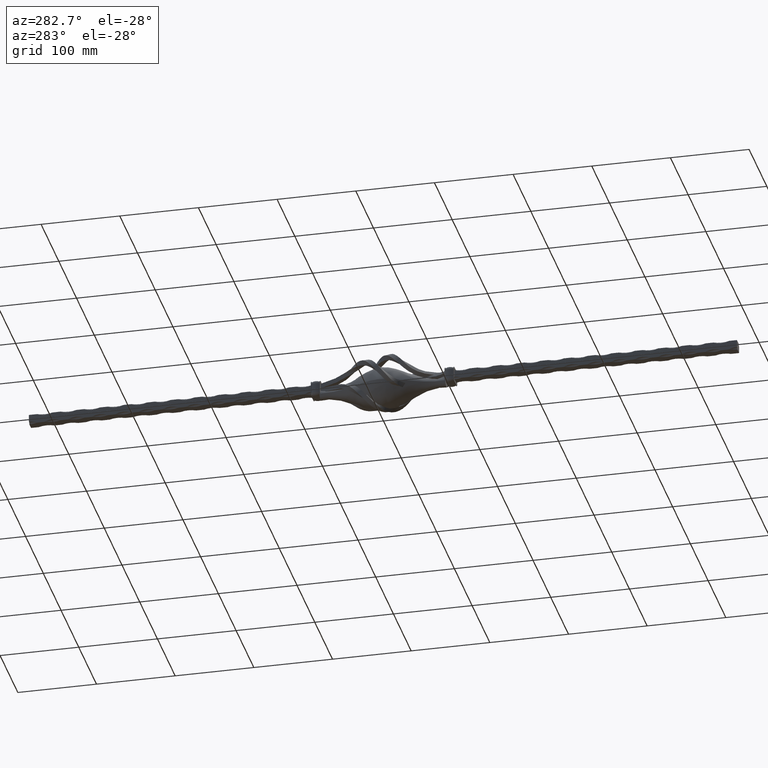
[diagram: clean part render]
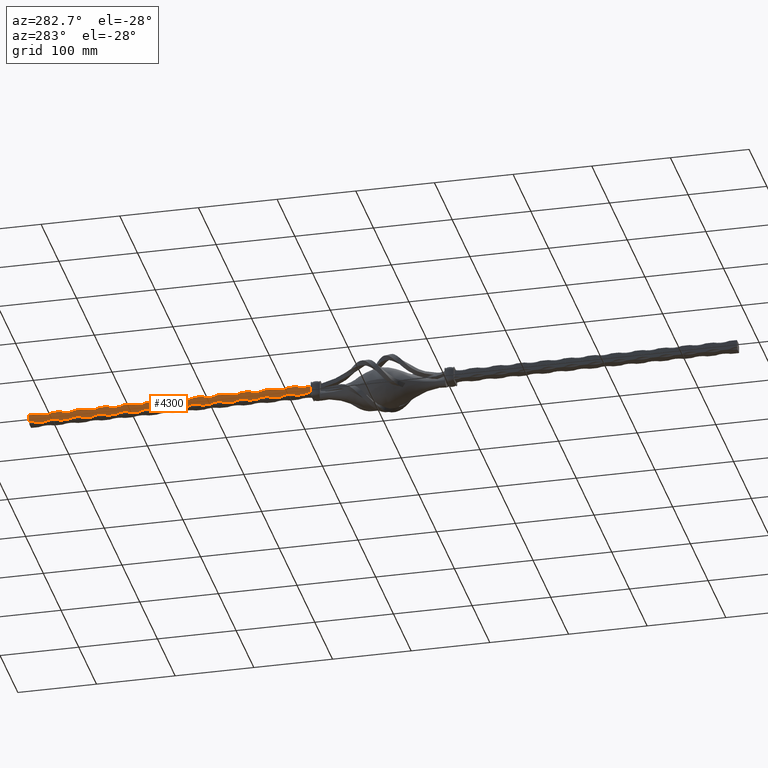
[diagram: same view with one face highlighted and labeled with its STEP entity id]
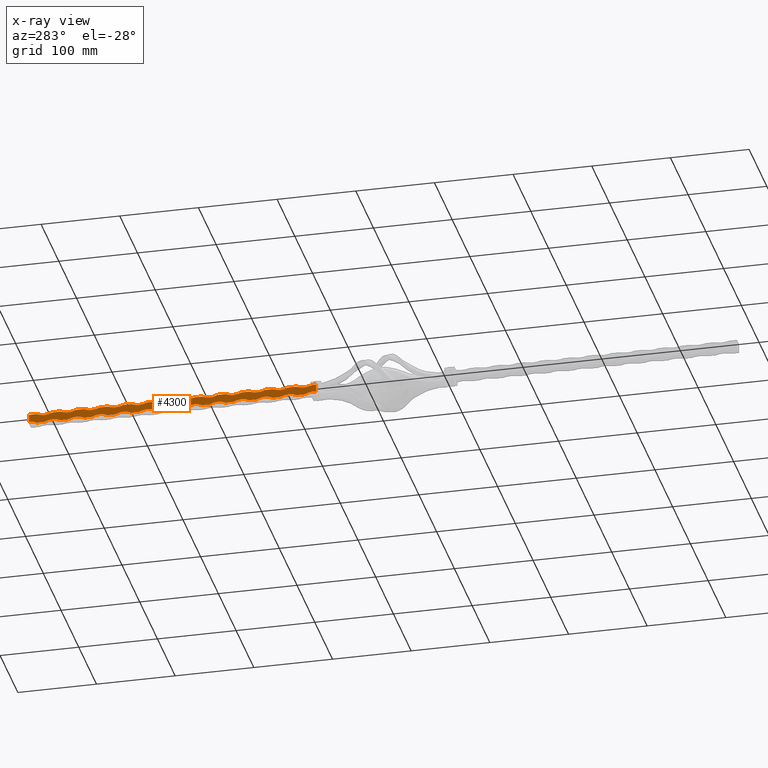
[diagram: x-ray of the same camera — body ghosted, the highlighted face saturated]
A machine part, auxiliary view. The second image highlights one B-rep face of the part: STEP entity #4300.
The next image is the same camera in x-ray: the body ghosted, the highlighted face saturated — about 0% of this face is hidden behind the body in this view.
In plain terms, the highlighted planar face has unit normal (1, -0, 0).
Its self-contained STEP definition (entity closure, byte-faithful):
#63 = CARTESIAN_POINT ( 'NONE',  ( -2.999999999999936939, 310.0000000000000000, 3.000000000000181188 ) ) ;
#104 = VERTEX_POINT ( 'NONE', #7265 ) ;
#132 = CARTESIAN_POINT ( 'NONE',  ( -2.999999999999935163, 199.9999999999995168, 2.999999999999929834 ) ) ;
#153 = VERTEX_POINT ( 'NONE', #24481 ) ;
#179 = AXIS2_PLACEMENT_3D ( 'NONE', #25331, #1592, #21069 ) ;
#226 = AXIS2_PLACEMENT_3D ( 'NONE', #10732, #25929, #10829 ) ;
#344 = DIRECTION ( 'NONE',  ( -0.000000000000000000, -1.000000000000000000, -0.000000000000000000 ) ) ;
#557 = EDGE_CURVE ( 'NONE', #24924, #27871, #6492, .T. ) ;
#598 = DIRECTION ( 'NONE',  ( 1.000000000000000000, -0.000000000000000000, 0.000000000000000000 ) ) ;
#620 = CARTESIAN_POINT ( 'NONE',  ( -2.999999999999937383, 450.0000000000000000, 2.999999999999937828 ) ) ;
#626 = CIRCLE ( 'NONE', #4016, 21.25000000000004263 ) ;
#670 = ORIENTED_EDGE ( 'NONE', *, *, #2177, .T. ) ;
#704 = VERTEX_POINT ( 'NONE', #11521 ) ;
#757 = VERTEX_POINT ( 'NONE', #3324 ) ;
#782 = DIRECTION ( 'NONE',  ( -1.000000000000000000, 0.000000000000000000, -0.000000000000000000 ) ) ;
#872 = DIRECTION ( 'NONE',  ( 0.000000000000000000, 2.612289469706245741E-15, -1.000000000000000000 ) ) ;
#913 = CIRCLE ( 'NONE', #14839, 21.25000000000003908 ) ;
#1027 = CIRCLE ( 'NONE', #7042, 21.25000000000003908 ) ;
#1199 = LINE ( 'NONE', #2865, #24333 ) ;
#1258 = CARTESIAN_POINT ( 'NONE',  ( -2.999999999999938272, 400.0000000000000000, 3.000000000000181188 ) ) ;
#1338 = EDGE_CURVE ( 'NONE', #2115, #9264, #22472, .T. ) ;
#1385 = DIRECTION ( 'NONE',  ( -0.000000000000000000, -1.000000000000000000, -0.000000000000000000 ) ) ;
#1388 = CARTESIAN_POINT ( 'NONE',  ( -2.999999999999934719, 130.0000000000000000, 33.75000000000010658 ) ) ;
#1445 = DIRECTION ( 'NONE',  ( -0.000000000000000000, -1.000000000000000000, -0.000000000000000000 ) ) ;
#1581 = EDGE_CURVE ( 'NONE', #5740, #8986, #17308, .T. ) ;
#1586 = DIRECTION ( 'NONE',  ( 1.000000000000000000, -0.000000000000000000, 0.000000000000000000 ) ) ;
#1592 = DIRECTION ( 'NONE',  ( -1.000000000000000000, 0.000000000000000000, -0.000000000000000000 ) ) ;
#1705 = VERTEX_POINT ( 'NONE', #1258 ) ;
#1791 = EDGE_CURVE ( 'NONE', #4782, #1705, #17628, .T. ) ;
#1797 = CARTESIAN_POINT ( 'NONE',  ( -2.999999999999936939, 289.9999999999995453, 2.999999999999929834 ) ) ;
#1813 = DIRECTION ( 'NONE',  ( -0.000000000000000000, -1.000000000000000000, -0.000000000000000000 ) ) ;
#1824 = CIRCLE ( 'NONE', #6959, 21.25000000000004263 ) ;
#1906 = DIRECTION ( 'NONE',  ( 0.000000000000000000, 0.000000000000000000, -1.000000000000000000 ) ) ;
#2021 = DIRECTION ( 'NONE',  ( 0.000000000000000000, 0.000000000000000000, -1.000000000000000000 ) ) ;
#2043 = CARTESIAN_POINT ( 'NONE',  ( -2.999999999999931610, 140.0000000000000000, 15.00000000000006395 ) ) ;
#2115 = VERTEX_POINT ( 'NONE', #132 ) ;
#2151 = DIRECTION ( 'NONE',  ( 1.000000000000000000, -0.000000000000000000, 0.000000000000000000 ) ) ;
#2177 = EDGE_CURVE ( 'NONE', #6026, #9264, #13902, .T. ) ;
#2288 = LINE ( 'NONE', #21337, #24724 ) ;
#2302 = DIRECTION ( 'NONE',  ( 1.000000000000000000, -0.000000000000000000, 0.000000000000000000 ) ) ;
#2318 = DIRECTION ( 'NONE',  ( -1.000000000000000000, 0.000000000000000000, -0.000000000000000000 ) ) ;
#2501 = DIRECTION ( 'NONE',  ( -0.000000000000000000, -1.000000000000000000, -0.000000000000000000 ) ) ;
#2589 = CARTESIAN_POINT ( 'NONE',  ( -2.999999999999940048, 430.0000000000000000, 33.75000000000010658 ) ) ;
#2592 = CARTESIAN_POINT ( 'NONE',  ( -2.999999999999935163, 210.0000000000000000, -15.74999999999985434 ) ) ;
#2625 = EDGE_CURVE ( 'NONE', #5539, #24341, #3681, .T. ) ;
#2662 = DIRECTION ( 'NONE',  ( -0.000000000000000000, -1.000000000000000000, -0.000000000000000000 ) ) ;
#2678 = CARTESIAN_POINT ( 'NONE',  ( -2.999999999999930722, 110.0000000000000426, 15.00000000000006395 ) ) ;
#2752 = CARTESIAN_POINT ( 'NONE',  ( -2.999999999999943601, 270.0000000000000000, 15.00000000000006395 ) ) ;
#2865 = CARTESIAN_POINT ( 'NONE',  ( -2.999999999999937383, 450.0000000000000000, 15.00000000000006395 ) ) ;
#2874 = ORIENTED_EDGE ( 'NONE', *, *, #18244, .F. ) ;
#2891 = AXIS2_PLACEMENT_3D ( 'NONE', #15194, #28036, #2021 ) ;
#2994 = ORIENTED_EDGE ( 'NONE', *, *, #557, .T. ) ;
#3028 = ORIENTED_EDGE ( 'NONE', *, *, #7873, .T. ) ;
#3087 = AXIS2_PLACEMENT_3D ( 'NONE', #6379, #8563, #25931 ) ;
#3108 = VECTOR ( 'NONE', #11343, 1000.000000000000000 ) ;
#3182 = LINE ( 'NONE', #25195, #25632 ) ;
#3319 = EDGE_CURVE ( 'NONE', #18677, #104, #18256, .T. ) ;
#3324 = CARTESIAN_POINT ( 'NONE',  ( -2.999999999999933387, 130.0000000000000000, 3.000000000000181188 ) ) ;
#3379 = LINE ( 'NONE', #17268, #24799 ) ;
#3489 = ORIENTED_EDGE ( 'NONE', *, *, #15762, .F. ) ;
#3499 = CARTESIAN_POINT ( 'NONE',  ( -2.999999999999938272, 420.0000000000000000, -15.74999999999985434 ) ) ;
#3648 = DIRECTION ( 'NONE',  ( 1.000000000000000000, -0.000000000000000000, 0.000000000000000000 ) ) ;
#3664 = VERTEX_POINT ( 'NONE', #26461 ) ;
#3667 = AXIS2_PLACEMENT_3D ( 'NONE', #23780, #2302, #26051 ) ;
#3681 = CIRCLE ( 'NONE', #15115, 21.25000000000004263 ) ;
#3833 = DIRECTION ( 'NONE',  ( -0.000000000000000000, -1.000000000000000000, -0.000000000000000000 ) ) ;
#3843 = DIRECTION ( 'NONE',  ( 0.000000000000000000, 0.000000000000000000, -1.000000000000000000 ) ) ;
#3874 = ORIENTED_EDGE ( 'NONE', *, *, #9797, .F. ) ;
#3940 = DIRECTION ( 'NONE',  ( 1.000000000000000000, -0.000000000000000000, 0.000000000000000000 ) ) ;
#3979 = CARTESIAN_POINT ( 'NONE',  ( -2.999999999999935163, 240.0000000000000000, -15.74999999999985434 ) ) ;
#4016 = AXIS2_PLACEMENT_3D ( 'NONE', #14004, #7345, #22569 ) ;
#4077 = CARTESIAN_POINT ( 'NONE',  ( -2.999999999999937383, 450.0000000000000000, 15.00000000000006395 ) ) ;
#4225 = DIRECTION ( 'NONE',  ( -0.000000000000000000, -1.000000000000000000, -0.000000000000000000 ) ) ;
#4253 = VECTOR ( 'NONE', #6666, 1000.000000000000000 ) ;
#4295 = CARTESIAN_POINT ( 'NONE',  ( -2.999999999999932054, 169.9999999999999716, 15.00000000000006395 ) ) ;
#4300 = ADVANCED_FACE ( 'NONE', ( #17229 ), #25854, .F. ) ;
#4412 = ORIENTED_EDGE ( 'NONE', *, *, #6968, .T. ) ;
#4470 = CARTESIAN_POINT ( 'NONE',  ( -2.999999999999937383, 450.0000000000000000, 15.00000000000006395 ) ) ;
#4496 = VECTOR ( 'NONE', #12233, 1000.000000000000000 ) ;
#4576 = AXIS2_PLACEMENT_3D ( 'NONE', #2592, #2318, #22175 ) ;
#4626 = ORIENTED_EDGE ( 'NONE', *, *, #5181, .T. ) ;
#4631 = ORIENTED_EDGE ( 'NONE', *, *, #26147, .T. ) ;
#4782 = VERTEX_POINT ( 'NONE', #13719 ) ;
#4784 = DIRECTION ( 'NONE',  ( -0.000000000000000000, -1.000000000000000000, -0.000000000000000000 ) ) ;
#4905 = EDGE_CURVE ( 'NONE', #6026, #8791, #13159, .T. ) ;
#5038 = EDGE_CURVE ( 'NONE', #26371, #23745, #24029, .T. ) ;
#5048 = ORIENTED_EDGE ( 'NONE', *, *, #20929, .F. ) ;
#5115 = ORIENTED_EDGE ( 'NONE', *, *, #10775, .F. ) ;
#5181 = EDGE_CURVE ( 'NONE', #16895, #8791, #25040, .T. ) ;
#5194 = CARTESIAN_POINT ( 'NONE',  ( -2.999999999999936939, 360.0000000000000000, -15.74999999999985434 ) ) ;
#5196 = ORIENTED_EDGE ( 'NONE', *, *, #17661, .F. ) ;
#5318 = VERTEX_POINT ( 'NONE', #18757 ) ;
#5401 = CARTESIAN_POINT ( 'NONE',  ( -2.999999999999934275, 290.0000000000000568, 15.00000000000006395 ) ) ;
#5409 = DIRECTION ( 'NONE',  ( 0.000000000000000000, 1.959217102279684602E-15, -1.000000000000000000 ) ) ;
#5539 = VERTEX_POINT ( 'NONE', #9309 ) ;
#5694 = CARTESIAN_POINT ( 'NONE',  ( -2.999999999999932498, 200.0000000000000000, 15.00000000000006395 ) ) ;
#5703 = DIRECTION ( 'NONE',  ( 0.000000000000000000, 2.612289469706245741E-15, -1.000000000000000000 ) ) ;
#5706 = ORIENTED_EDGE ( 'NONE', *, *, #8630, .F. ) ;
#5740 = VERTEX_POINT ( 'NONE', #1797 ) ;
#5758 = CARTESIAN_POINT ( 'NONE',  ( -2.999999999999937383, 450.0000000000000000, 15.00000000000006395 ) ) ;
#5801 = ORIENTED_EDGE ( 'NONE', *, *, #7369, .F. ) ;
#5888 = VECTOR ( 'NONE', #11562, 1000.000000000000000 ) ;
#5953 = CARTESIAN_POINT ( 'NONE',  ( -2.999999999999937383, 450.0000000000000000, 15.00000000000006395 ) ) ;
#6026 = VERTEX_POINT ( 'NONE', #22025 ) ;
#6085 = DIRECTION ( 'NONE',  ( -1.000000000000000000, 0.000000000000000000, -0.000000000000000000 ) ) ;
#6130 = ORIENTED_EDGE ( 'NONE', *, *, #17013, .F. ) ;
#6131 = EDGE_CURVE ( 'NONE', #17669, #19911, #1199, .T. ) ;
#6222 = VERTEX_POINT ( 'NONE', #9063 ) ;
#6286 = ORIENTED_EDGE ( 'NONE', *, *, #1791, .F. ) ;
#6347 = VERTEX_POINT ( 'NONE', #24996 ) ;
#6379 = CARTESIAN_POINT ( 'NONE',  ( -2.999999999999938272, 390.0000000000000000, -15.74999999999985434 ) ) ;
#6455 = DIRECTION ( 'NONE',  ( -0.000000000000000000, -1.000000000000000000, -0.000000000000000000 ) ) ;
#6492 = LINE ( 'NONE', #8312, #18692 ) ;
#6505 = VERTEX_POINT ( 'NONE', #10557 ) ;
#6529 = VERTEX_POINT ( 'NONE', #27751 ) ;
#6652 = EDGE_CURVE ( 'NONE', #17086, #7761, #11727, .T. ) ;
#6666 = DIRECTION ( 'NONE',  ( -0.000000000000000000, -1.000000000000000000, -0.000000000000000000 ) ) ;
#6799 = VECTOR ( 'NONE', #9901, 1000.000000000000000 ) ;
#6884 = CARTESIAN_POINT ( 'NONE',  ( -2.999999999999937383, 450.0000000000000000, 15.00000000000006395 ) ) ;
#6943 = VERTEX_POINT ( 'NONE', #16294 ) ;
#6959 = AXIS2_PLACEMENT_3D ( 'NONE', #7684, #9972, #14334 ) ;
#6968 = EDGE_CURVE ( 'NONE', #27355, #8644, #20202, .T. ) ;
#7001 = ORIENTED_EDGE ( 'NONE', *, *, #6652, .F. ) ;
#7026 = CIRCLE ( 'NONE', #179, 21.25000000000003908 ) ;
#7042 = AXIS2_PLACEMENT_3D ( 'NONE', #19135, #25428, #23542 ) ;
#7096 = ORIENTED_EDGE ( 'NONE', *, *, #12158, .F. ) ;
#7265 = CARTESIAN_POINT ( 'NONE',  ( -2.999999999999936939, 410.0000000000000568, 15.00000000000006395 ) ) ;
#7345 = DIRECTION ( 'NONE',  ( 1.000000000000000000, -0.000000000000000000, 0.000000000000000000 ) ) ;
#7365 = DIRECTION ( 'NONE',  ( -1.000000000000000000, 0.000000000000000000, -0.000000000000000000 ) ) ;
#7369 = EDGE_CURVE ( 'NONE', #18677, #11767, #21558, .T. ) ;
#7394 = AXIS2_PLACEMENT_3D ( 'NONE', #14584, #23356, #21067 ) ;
#7684 = CARTESIAN_POINT ( 'NONE',  ( -2.999999999999935163, 159.9999999999999716, 33.75000000000010658 ) ) ;
#7711 = CARTESIAN_POINT ( 'NONE',  ( -2.999999999999937383, 450.0000000000000000, 15.00000000000006395 ) ) ;
#7761 = VERTEX_POINT ( 'NONE', #4295 ) ;
#7800 = CARTESIAN_POINT ( 'NONE',  ( -2.999999999999937383, 450.0000000000000000, 2.999999999999937828 ) ) ;
#7838 = ORIENTED_EDGE ( 'NONE', *, *, #8019, .F. ) ;
#7873 = EDGE_CURVE ( 'NONE', #26263, #11767, #26440, .T. ) ;
#8019 = EDGE_CURVE ( 'NONE', #16895, #8986, #913, .T. ) ;
#8151 = VERTEX_POINT ( 'NONE', #5694 ) ;
#8263 = AXIS2_PLACEMENT_3D ( 'NONE', #16954, #1586, #14861 ) ;
#8312 = CARTESIAN_POINT ( 'NONE',  ( -2.999999999999937383, 450.0000000000000000, 2.999999999999937828 ) ) ;
#8554 = CIRCLE ( 'NONE', #23948, 21.25000000000003908 ) ;
#8563 = DIRECTION ( 'NONE',  ( -1.000000000000000000, 0.000000000000000000, -0.000000000000000000 ) ) ;
#8604 = ORIENTED_EDGE ( 'NONE', *, *, #2625, .T. ) ;
#8630 = EDGE_CURVE ( 'NONE', #24924, #14457, #8875, .T. ) ;
#8644 = VERTEX_POINT ( 'NONE', #24852 ) ;
#8723 = CARTESIAN_POINT ( 'NONE',  ( -2.999999999999938272, 430.0000000000000000, 3.000000000000181188 ) ) ;
#8791 = VERTEX_POINT ( 'NONE', #12231 ) ;
#8805 = ORIENTED_EDGE ( 'NONE', *, *, #6131, .F. ) ;
#8875 = CIRCLE ( 'NONE', #17202, 21.25000000000003908 ) ;
#8916 = VERTEX_POINT ( 'NONE', #2043 ) ;
#8986 = VERTEX_POINT ( 'NONE', #10506 ) ;
#8995 = LINE ( 'NONE', #18466, #17118 ) ;
#9012 = ORIENTED_EDGE ( 'NONE', *, *, #19600, .T. ) ;
#9063 = CARTESIAN_POINT ( 'NONE',  ( -2.999999999999933387, 139.9999999999994884, 2.999999999999929834 ) ) ;
#9096 = VERTEX_POINT ( 'NONE', #26071 ) ;
#9264 = VERTEX_POINT ( 'NONE', #21039 ) ;
#9309 = CARTESIAN_POINT ( 'NONE',  ( -2.999999999999943601, 300.0000000000000000, 15.00000000000006395 ) ) ;
#9378 = AXIS2_PLACEMENT_3D ( 'NONE', #13656, #15622, #19992 ) ;
#9614 = CIRCLE ( 'NONE', #9378, 21.25000000000003908 ) ;
#9678 = DIRECTION ( 'NONE',  ( -0.000000000000000000, -0.000000000000000000, 1.000000000000000000 ) ) ;
#9701 = VECTOR ( 'NONE', #26087, 1000.000000000000000 ) ;
#9755 = EDGE_CURVE ( 'NONE', #26371, #757, #27511, .T. ) ;
#9772 = CARTESIAN_POINT ( 'NONE',  ( -2.999999999999937383, 85.00000000000000000, 15.00000000000006395 ) ) ;
#9794 = DIRECTION ( 'NONE',  ( -0.000000000000000000, -1.000000000000000000, -0.000000000000000000 ) ) ;
#9797 = EDGE_CURVE ( 'NONE', #6943, #14346, #1027, .T. ) ;
#9901 = DIRECTION ( 'NONE',  ( -0.000000000000000000, -1.000000000000000000, -0.000000000000000000 ) ) ;
#9911 = VERTEX_POINT ( 'NONE', #12586 ) ;
#9940 = VECTOR ( 'NONE', #1385, 1000.000000000000000 ) ;
#9957 = EDGE_CURVE ( 'NONE', #12730, #16121, #25472, .T. ) ;
#9972 = DIRECTION ( 'NONE',  ( 1.000000000000000000, -0.000000000000000000, 0.000000000000000000 ) ) ;
#10074 = CARTESIAN_POINT ( 'NONE',  ( -2.999999999999943601, 119.9999999999999858, 15.00000000000006395 ) ) ;
#10100 = CARTESIAN_POINT ( 'NONE',  ( -2.999999999999933387, 230.0000000000000000, 15.00000000000006395 ) ) ;
#10137 = CARTESIAN_POINT ( 'NONE',  ( -2.999999999999937383, 450.0000000000000000, 15.00000000000006395 ) ) ;
#10189 = DIRECTION ( 'NONE',  ( -1.000000000000000000, 0.000000000000000000, -0.000000000000000000 ) ) ;
#10296 = ORIENTED_EDGE ( 'NONE', *, *, #25013, .T. ) ;
#10316 = CARTESIAN_POINT ( 'NONE',  ( -2.999999999999935163, 259.9999999999995453, 2.999999999999929834 ) ) ;
#10506 = CARTESIAN_POINT ( 'NONE',  ( -2.999999999999935163, 280.0000000000000000, 3.000000000000181188 ) ) ;
#10521 = AXIS2_PLACEMENT_3D ( 'NONE', #1388, #20761, #22967 ) ;
#10557 = CARTESIAN_POINT ( 'NONE',  ( -2.999999999999933831, 260.0000000000000000, 15.00000000000006395 ) ) ;
#10732 = CARTESIAN_POINT ( 'NONE',  ( -2.999999999999937383, 280.0000000000000000, 33.75000000000010658 ) ) ;
#10775 = EDGE_CURVE ( 'NONE', #5539, #16105, #28164, .T. ) ;
#10829 = DIRECTION ( 'NONE',  ( 0.000000000000000000, 0.000000000000000000, -1.000000000000000000 ) ) ;
#10890 = CARTESIAN_POINT ( 'NONE',  ( -2.999999999999937383, 450.0000000000000000, 15.00000000000006395 ) ) ;
#11052 = EDGE_CURVE ( 'NONE', #25248, #14318, #16600, .T. ) ;
#11076 = CARTESIAN_POINT ( 'NONE',  ( -2.999999999999937383, 450.0000000000000000, 2.999999999999937828 ) ) ;
#11091 = VECTOR ( 'NONE', #344, 1000.000000000000000 ) ;
#11259 = CARTESIAN_POINT ( 'NONE',  ( -2.999999999999933387, 109.9999999999995168, 2.999999999999929834 ) ) ;
#11316 = DIRECTION ( 'NONE',  ( 0.000000000000000000, 0.000000000000000000, -1.000000000000000000 ) ) ;
#11336 = DIRECTION ( 'NONE',  ( 0.000000000000000000, 0.000000000000000000, -1.000000000000000000 ) ) ;
#11343 = DIRECTION ( 'NONE',  ( -0.000000000000000000, -1.000000000000000000, -0.000000000000000000 ) ) ;
#11353 = AXIS2_PLACEMENT_3D ( 'NONE', #3979, #6085, #27544 ) ;
#11414 = VECTOR ( 'NONE', #14633, 1000.000000000000000 ) ;
#11434 = VERTEX_POINT ( 'NONE', #63 ) ;
#11521 = CARTESIAN_POINT ( 'NONE',  ( -2.999999999999943601, 210.0000000000000000, 15.00000000000006395 ) ) ;
#11562 = DIRECTION ( 'NONE',  ( -0.000000000000000000, -1.000000000000000000, -0.000000000000000000 ) ) ;
#11706 = VERTEX_POINT ( 'NONE', #20250 ) ;
#11727 = LINE ( 'NONE', #4470, #4253 ) ;
#11760 = ORIENTED_EDGE ( 'NONE', *, *, #1581, .T. ) ;
#11767 = VERTEX_POINT ( 'NONE', #20536 ) ;
#11776 = DIRECTION ( 'NONE',  ( 0.000000000000000000, 2.612289469706245741E-15, -1.000000000000000000 ) ) ;
#11897 = CARTESIAN_POINT ( 'NONE',  ( -2.999999999999931610, 100.0000000000000284, 3.000000000000181188 ) ) ;
#12078 = DIRECTION ( 'NONE',  ( -0.000000000000000000, -1.000000000000000000, -0.000000000000000000 ) ) ;
#12110 = ORIENTED_EDGE ( 'NONE', *, *, #5038, .T. ) ;
#12158 = EDGE_CURVE ( 'NONE', #19233, #8644, #23039, .T. ) ;
#12231 = CARTESIAN_POINT ( 'NONE',  ( -2.999999999999935163, 250.0000000000000000, 3.000000000000181188 ) ) ;
#12233 = DIRECTION ( 'NONE',  ( -0.000000000000000000, -1.000000000000000000, -0.000000000000000000 ) ) ;
#12311 = CARTESIAN_POINT ( 'NONE',  ( -2.999999999999936939, 339.9999999999999432, 3.000000000000181188 ) ) ;
#12331 = CIRCLE ( 'NONE', #24320, 21.25000000000003908 ) ;
#12392 = DIRECTION ( 'NONE',  ( 0.000000000000000000, 2.612289469706245741E-15, -1.000000000000000000 ) ) ;
#12431 = ORIENTED_EDGE ( 'NONE', *, *, #16111, .T. ) ;
#12510 = EDGE_CURVE ( 'NONE', #6347, #24341, #19235, .T. ) ;
#12586 = CARTESIAN_POINT ( 'NONE',  ( -2.999999999999937383, 450.0000000000000000, 15.00000000000006395 ) ) ;
#12632 = CARTESIAN_POINT ( 'NONE',  ( -2.999999999999938272, 409.9999999999995453, 2.999999999999929834 ) ) ;
#12730 = VERTEX_POINT ( 'NONE', #20193 ) ;
#12876 = EDGE_CURVE ( 'NONE', #6222, #13143, #7026, .T. ) ;
#12908 = CARTESIAN_POINT ( 'NONE',  ( -2.999999999999937383, 450.0000000000000000, 2.999999999999937828 ) ) ;
#12920 = ORIENTED_EDGE ( 'NONE', *, *, #21399, .F. ) ;
#13042 = AXIS2_PLACEMENT_3D ( 'NONE', #26321, #598, #11316 ) ;
#13068 = ORIENTED_EDGE ( 'NONE', *, *, #13410, .F. ) ;
#13143 = VERTEX_POINT ( 'NONE', #23619 ) ;
#13159 = CIRCLE ( 'NONE', #11353, 21.25000000000003908 ) ;
#13410 = EDGE_CURVE ( 'NONE', #704, #8151, #20950, .T. ) ;
#13501 = VECTOR ( 'NONE', #9794, 1000.000000000000000 ) ;
#13561 = CARTESIAN_POINT ( 'NONE',  ( -2.999999999999937383, 450.0000000000000000, 15.00000000000006395 ) ) ;
#13656 = CARTESIAN_POINT ( 'NONE',  ( -2.999999999999938272, 449.9999999999999432, -15.74999999999985434 ) ) ;
#13719 = CARTESIAN_POINT ( 'NONE',  ( -2.999999999999938272, 379.9999999999995453, 2.999999999999929834 ) ) ;
#13748 = EDGE_CURVE ( 'NONE', #153, #14318, #22296, .T. ) ;
#13759 = LINE ( 'NONE', #11076, #26315 ) ;
#13760 = ORIENTED_EDGE ( 'NONE', *, *, #14918, .T. ) ;
#13902 = LINE ( 'NONE', #24255, #24465 ) ;
#14004 = CARTESIAN_POINT ( 'NONE',  ( -2.999999999999936495, 220.0000000000000000, 33.75000000000010658 ) ) ;
#14053 = VECTOR ( 'NONE', #1445, 1000.000000000000000 ) ;
#14251 = AXIS2_PLACEMENT_3D ( 'NONE', #25321, #3648, #27509 ) ;
#14318 = VERTEX_POINT ( 'NONE', #8723 ) ;
#14334 = DIRECTION ( 'NONE',  ( 0.000000000000000000, 0.000000000000000000, -1.000000000000000000 ) ) ;
#14346 = VERTEX_POINT ( 'NONE', #25998 ) ;
#14452 = ORIENTED_EDGE ( 'NONE', *, *, #23904, .F. ) ;
#14457 = VERTEX_POINT ( 'NONE', #19414 ) ;
#14510 = CARTESIAN_POINT ( 'NONE',  ( -2.999999999999937383, 440.0000000000000000, 15.00000000000006395 ) ) ;
#14584 = CARTESIAN_POINT ( 'NONE',  ( -2.999999999999933387, 120.0000000000000000, -15.74999999999985434 ) ) ;
#14633 = DIRECTION ( 'NONE',  ( -0.000000000000000000, -1.000000000000000000, -0.000000000000000000 ) ) ;
#14676 = CARTESIAN_POINT ( 'NONE',  ( -2.999999999999936939, 250.0000000000000000, 33.75000000000010658 ) ) ;
#14729 = CARTESIAN_POINT ( 'NONE',  ( -2.999999999999936939, 300.0000000000000000, -15.74999999999985434 ) ) ;
#14839 = AXIS2_PLACEMENT_3D ( 'NONE', #22528, #22716, #872 ) ;
#14861 = DIRECTION ( 'NONE',  ( 0.000000000000000000, 0.000000000000000000, -1.000000000000000000 ) ) ;
#14895 = CARTESIAN_POINT ( 'NONE',  ( -2.999999999999937383, 85.00000000000000000, 4.903389552323058176 ) ) ;
#14918 = EDGE_CURVE ( 'NONE', #6943, #13143, #13759, .T. ) ;
#15010 = CARTESIAN_POINT ( 'NONE',  ( -2.999999999999943601, 390.0000000000000000, 15.00000000000006395 ) ) ;
#15104 = VERTEX_POINT ( 'NONE', #10100 ) ;
#15115 = AXIS2_PLACEMENT_3D ( 'NONE', #21827, #2151, #24013 ) ;
#15122 = ORIENTED_EDGE ( 'NONE', *, *, #26261, .T. ) ;
#15134 = EDGE_CURVE ( 'NONE', #6222, #757, #3182, .T. ) ;
#15194 = CARTESIAN_POINT ( 'NONE',  ( -2.999999999999938272, 339.9999999999999432, 33.75000000000010658 ) ) ;
#15420 = CARTESIAN_POINT ( 'NONE',  ( -2.999999999999943601, 360.0000000000000000, 15.00000000000006395 ) ) ;
#15493 = CARTESIAN_POINT ( 'NONE',  ( -2.999999999999937383, 450.0000000000000000, 15.00000000000006395 ) ) ;
#15622 = DIRECTION ( 'NONE',  ( -1.000000000000000000, 0.000000000000000000, -0.000000000000000000 ) ) ;
#15762 = EDGE_CURVE ( 'NONE', #9911, #16121, #25604, .T. ) ;
#15968 = EDGE_CURVE ( 'NONE', #26937, #16105, #23913, .T. ) ;
#16105 = VERTEX_POINT ( 'NONE', #5401 ) ;
#16111 = EDGE_CURVE ( 'NONE', #9096, #7761, #1824, .T. ) ;
#16121 = VERTEX_POINT ( 'NONE', #14510 ) ;
#16126 = ORIENTED_EDGE ( 'NONE', *, *, #16966, .F. ) ;
#16198 = ORIENTED_EDGE ( 'NONE', *, *, #15134, .T. ) ;
#16201 = VECTOR ( 'NONE', #2662, 1000.000000000000000 ) ;
#16294 = CARTESIAN_POINT ( 'NONE',  ( -2.999999999999933387, 169.9999999999995168, 2.999999999999929834 ) ) ;
#16310 = CARTESIAN_POINT ( 'NONE',  ( -2.999999999999931610, 90.00000000000002842, -15.74999999999985434 ) ) ;
#16315 = CARTESIAN_POINT ( 'NONE',  ( -2.999999999999937383, 450.0000000000000000, 15.00000000000006395 ) ) ;
#16406 = CIRCLE ( 'NONE', #26649, 21.25000000000003908 ) ;
#16483 = DIRECTION ( 'NONE',  ( -0.000000000000000000, -1.000000000000000000, -0.000000000000000000 ) ) ;
#16485 = ORIENTED_EDGE ( 'NONE', *, *, #18237, .T. ) ;
#16598 = EDGE_CURVE ( 'NONE', #153, #3664, #9614, .T. ) ;
#16600 = CIRCLE ( 'NONE', #21424, 21.25000000000003908 ) ;
#16714 = LINE ( 'NONE', #15493, #3108 ) ;
#16895 = VERTEX_POINT ( 'NONE', #10316 ) ;
#16954 = CARTESIAN_POINT ( 'NONE',  ( -2.999999999999935607, 190.0000000000000000, 33.75000000000010658 ) ) ;
#16966 = EDGE_CURVE ( 'NONE', #5318, #15104, #21496, .T. ) ;
#17013 = EDGE_CURVE ( 'NONE', #5740, #11434, #12331, .T. ) ;
#17081 = CARTESIAN_POINT ( 'NONE',  ( -2.999999999999939604, 400.0000000000000000, 33.75000000000010658 ) ) ;
#17086 = VERTEX_POINT ( 'NONE', #19538 ) ;
#17118 = VECTOR ( 'NONE', #16483, 1000.000000000000000 ) ;
#17178 = DIRECTION ( 'NONE',  ( -0.000000000000000000, -0.000000000000000000, 1.000000000000000000 ) ) ;
#17202 = AXIS2_PLACEMENT_3D ( 'NONE', #5194, #7365, #22587 ) ;
#17229 = FACE_OUTER_BOUND ( 'NONE', #24177, .T. ) ;
#17268 = CARTESIAN_POINT ( 'NONE',  ( -2.999999999999937383, 450.0000000000000000, 15.00000000000006395 ) ) ;
#17308 = LINE ( 'NONE', #620, #6799 ) ;
#17410 = AXIS2_PLACEMENT_3D ( 'NONE', #2589, #22173, #11336 ) ;
#17628 = CIRCLE ( 'NONE', #3087, 21.25000000000003908 ) ;
#17661 = EDGE_CURVE ( 'NONE', #27355, #23745, #8554, .T. ) ;
#17669 = VERTEX_POINT ( 'NONE', #10074 ) ;
#17896 = CIRCLE ( 'NONE', #19980, 21.25000000000004263 ) ;
#18066 = LINE ( 'NONE', #5953, #19759 ) ;
#18237 = EDGE_CURVE ( 'NONE', #19233, #19911, #22518, .T. ) ;
#18244 = EDGE_CURVE ( 'NONE', #12730, #104, #26917, .T. ) ;
#18256 = CIRCLE ( 'NONE', #19309, 21.25000000000004263 ) ;
#18400 = EDGE_CURVE ( 'NONE', #9096, #8916, #18066, .T. ) ;
#18466 = CARTESIAN_POINT ( 'NONE',  ( -2.999999999999937383, 450.0000000000000000, 2.999999999999937828 ) ) ;
#18471 = CIRCLE ( 'NONE', #8263, 21.25000000000004263 ) ;
#18638 = CIRCLE ( 'NONE', #10521, 21.25000000000004263 ) ;
#18677 = VERTEX_POINT ( 'NONE', #15010 ) ;
#18681 = DIRECTION ( 'NONE',  ( -1.000000000000000000, 0.000000000000000000, -0.000000000000000000 ) ) ;
#18692 = VECTOR ( 'NONE', #19292, 1000.000000000000000 ) ;
#18757 = CARTESIAN_POINT ( 'NONE',  ( -2.999999999999943601, 240.0000000000000000, 15.00000000000006395 ) ) ;
#19135 = CARTESIAN_POINT ( 'NONE',  ( -2.999999999999933387, 180.0000000000000000, -15.74999999999985434 ) ) ;
#19233 = VERTEX_POINT ( 'NONE', #20090 ) ;
#19235 = LINE ( 'NONE', #4077, #19579 ) ;
#19259 = DIRECTION ( 'NONE',  ( 1.000000000000000000, -0.000000000000000000, 0.000000000000000000 ) ) ;
#19292 = DIRECTION ( 'NONE',  ( -0.000000000000000000, -1.000000000000000000, -0.000000000000000000 ) ) ;
#19309 = AXIS2_PLACEMENT_3D ( 'NONE', #17081, #19259, #1906 ) ;
#19414 = CARTESIAN_POINT ( 'NONE',  ( -2.999999999999936939, 370.0000000000000000, 3.000000000000181188 ) ) ;
#19519 = ORIENTED_EDGE ( 'NONE', *, *, #9957, .T. ) ;
#19538 = CARTESIAN_POINT ( 'NONE',  ( -2.999999999999943601, 180.0000000000000000, 15.00000000000006395 ) ) ;
#19579 = VECTOR ( 'NONE', #1813, 1000.000000000000000 ) ;
#19600 = EDGE_CURVE ( 'NONE', #6529, #11434, #8995, .T. ) ;
#19682 = DIRECTION ( 'NONE',  ( -0.000000000000000000, -1.000000000000000000, -0.000000000000000000 ) ) ;
#19694 = EDGE_CURVE ( 'NONE', #17086, #8151, #18471, .T. ) ;
#19759 = VECTOR ( 'NONE', #3833, 1000.000000000000000 ) ;
#19850 = DIRECTION ( 'NONE',  ( -0.000000000000000000, -1.000000000000000000, -0.000000000000000000 ) ) ;
#19858 = ORIENTED_EDGE ( 'NONE', *, *, #21738, .T. ) ;
#19911 = VERTEX_POINT ( 'NONE', #2678 ) ;
#19980 = AXIS2_PLACEMENT_3D ( 'NONE', #14676, #3940, #3843 ) ;
#19992 = DIRECTION ( 'NONE',  ( 0.000000000000000000, 2.612289469706245741E-15, -1.000000000000000000 ) ) ;
#20090 = CARTESIAN_POINT ( 'NONE',  ( -2.999999999999943601, 90.00000000000001421, 15.00000000000006395 ) ) ;
#20100 = ORIENTED_EDGE ( 'NONE', *, *, #27720, .T. ) ;
#20193 = CARTESIAN_POINT ( 'NONE',  ( -2.999999999999943601, 420.0000000000000000, 15.00000000000006395 ) ) ;
#20202 = LINE ( 'NONE', #9772, #20908 ) ;
#20250 = CARTESIAN_POINT ( 'NONE',  ( -2.999999999999935607, 350.0000000000000000, 15.00000000000006395 ) ) ;
#20290 = EDGE_CURVE ( 'NONE', #6529, #27871, #16406, .T. ) ;
#20536 = CARTESIAN_POINT ( 'NONE',  ( -2.999999999999936051, 380.0000000000000000, 15.00000000000006395 ) ) ;
#20674 = LINE ( 'NONE', #24462, #22061 ) ;
#20690 = ORIENTED_EDGE ( 'NONE', *, *, #12876, .F. ) ;
#20761 = DIRECTION ( 'NONE',  ( 1.000000000000000000, -0.000000000000000000, 0.000000000000000000 ) ) ;
#20908 = VECTOR ( 'NONE', #9678, 1000.000000000000000 ) ;
#20929 = EDGE_CURVE ( 'NONE', #26937, #6505, #21880, .T. ) ;
#20950 = LINE ( 'NONE', #6884, #11091 ) ;
#21025 = CARTESIAN_POINT ( 'NONE',  ( -2.999999999999937383, 450.0000000000000000, 2.999999999999937828 ) ) ;
#21039 = CARTESIAN_POINT ( 'NONE',  ( -2.999999999999935163, 220.0000000000000000, 3.000000000000181188 ) ) ;
#21067 = DIRECTION ( 'NONE',  ( 0.000000000000000000, 0.000000000000000000, -1.000000000000000000 ) ) ;
#21069 = DIRECTION ( 'NONE',  ( 0.000000000000000000, 0.000000000000000000, -1.000000000000000000 ) ) ;
#21337 = CARTESIAN_POINT ( 'NONE',  ( -2.999999999999937383, 450.0000000000000000, 2.999999999999937828 ) ) ;
#21399 = EDGE_CURVE ( 'NONE', #26263, #11706, #16714, .T. ) ;
#21424 = AXIS2_PLACEMENT_3D ( 'NONE', #3499, #18681, #5703 ) ;
#21496 = LINE ( 'NONE', #5758, #9940 ) ;
#21558 = LINE ( 'NONE', #10890, #9701 ) ;
#21738 = EDGE_CURVE ( 'NONE', #25248, #1705, #23889, .T. ) ;
#21827 = CARTESIAN_POINT ( 'NONE',  ( -2.999999999999937828, 310.0000000000000000, 33.75000000000010658 ) ) ;
#21880 = LINE ( 'NONE', #13561, #5888 ) ;
#21910 = CARTESIAN_POINT ( 'NONE',  ( -2.999999999999936939, 349.9999999999995453, 2.999999999999929834 ) ) ;
#21938 = DIRECTION ( 'NONE',  ( -0.000000000000000000, -1.000000000000000000, -0.000000000000000000 ) ) ;
#22025 = CARTESIAN_POINT ( 'NONE',  ( -2.999999999999935163, 229.9999999999995168, 2.999999999999929834 ) ) ;
#22061 = VECTOR ( 'NONE', #4784, 1000.000000000000000 ) ;
#22173 = DIRECTION ( 'NONE',  ( 1.000000000000000000, -0.000000000000000000, 0.000000000000000000 ) ) ;
#22175 = DIRECTION ( 'NONE',  ( 0.000000000000000000, 0.000000000000000000, -1.000000000000000000 ) ) ;
#22296 = LINE ( 'NONE', #21025, #11414 ) ;
#22405 = ORIENTED_EDGE ( 'NONE', *, *, #15968, .T. ) ;
#22472 = CIRCLE ( 'NONE', #4576, 21.25000000000003908 ) ;
#22518 = CIRCLE ( 'NONE', #14251, 21.25000000000004263 ) ;
#22528 = CARTESIAN_POINT ( 'NONE',  ( -2.999999999999935163, 270.0000000000000000, -15.74999999999985434 ) ) ;
#22569 = DIRECTION ( 'NONE',  ( 0.000000000000000000, 0.000000000000000000, -1.000000000000000000 ) ) ;
#22587 = DIRECTION ( 'NONE',  ( 0.000000000000000000, 2.612289469706245741E-15, -1.000000000000000000 ) ) ;
#22716 = DIRECTION ( 'NONE',  ( -1.000000000000000000, 0.000000000000000000, -0.000000000000000000 ) ) ;
#22960 = ORIENTED_EDGE ( 'NONE', *, *, #9755, .F. ) ;
#22967 = DIRECTION ( 'NONE',  ( 0.000000000000000000, 0.000000000000000000, -1.000000000000000000 ) ) ;
#23039 = LINE ( 'NONE', #24523, #16201 ) ;
#23180 = ORIENTED_EDGE ( 'NONE', *, *, #1338, .F. ) ;
#23356 = DIRECTION ( 'NONE',  ( -1.000000000000000000, 0.000000000000000000, -0.000000000000000000 ) ) ;
#23542 = DIRECTION ( 'NONE',  ( 0.000000000000000000, 0.000000000000000000, -1.000000000000000000 ) ) ;
#23568 = ORIENTED_EDGE ( 'NONE', *, *, #19694, .T. ) ;
#23619 = CARTESIAN_POINT ( 'NONE',  ( -2.999999999999933387, 159.9999999999999716, 3.000000000000181188 ) ) ;
#23745 = VERTEX_POINT ( 'NONE', #11897 ) ;
#23780 = CARTESIAN_POINT ( 'NONE',  ( -2.999999999999937383, 450.0000000000000000, 15.00000000000006395 ) ) ;
#23889 = LINE ( 'NONE', #12908, #27267 ) ;
#23904 = EDGE_CURVE ( 'NONE', #3664, #9911, #3379, .T. ) ;
#23913 = CIRCLE ( 'NONE', #226, 21.25000000000004263 ) ;
#23948 = AXIS2_PLACEMENT_3D ( 'NONE', #16310, #27252, #5409 ) ;
#23996 = ORIENTED_EDGE ( 'NONE', *, *, #12510, .F. ) ;
#24013 = DIRECTION ( 'NONE',  ( 0.000000000000000000, 0.000000000000000000, -1.000000000000000000 ) ) ;
#24029 = LINE ( 'NONE', #28102, #26058 ) ;
#24055 = CIRCLE ( 'NONE', #2891, 21.25000000000004263 ) ;
#24177 = EDGE_LOOP ( 'NONE', ( #7096, #16485, #8805, #26320, #26474, #12431, #7001, #23568, #13068, #20100, #16126, #4631, #5048, #22405, #5115, #8604, #23996, #27376, #12920, #3028, #5801, #24339, #2874, #19519, #3489, #14452, #26585, #24555, #27405, #19858, #6286, #15122, #5706, #2994, #25287, #9012, #6130, #11760, #7838, #4626, #27542, #670, #23180, #10296, #3874, #13760, #20690, #16198, #22960, #12110, #5196, #4412 ) ) ;
#24255 = CARTESIAN_POINT ( 'NONE',  ( -2.999999999999937383, 450.0000000000000000, 2.999999999999937828 ) ) ;
#24320 = AXIS2_PLACEMENT_3D ( 'NONE', #14729, #10189, #12392 ) ;
#24333 = VECTOR ( 'NONE', #2501, 1000.000000000000000 ) ;
#24339 = ORIENTED_EDGE ( 'NONE', *, *, #3319, .T. ) ;
#24341 = VERTEX_POINT ( 'NONE', #25435 ) ;
#24462 = CARTESIAN_POINT ( 'NONE',  ( -2.999999999999937383, 450.0000000000000000, 2.999999999999937828 ) ) ;
#24465 = VECTOR ( 'NONE', #19850, 1000.000000000000000 ) ;
#24468 = EDGE_CURVE ( 'NONE', #17669, #8916, #18638, .T. ) ;
#24481 = CARTESIAN_POINT ( 'NONE',  ( -2.999999999999938272, 439.9999999999994884, 2.999999999999929834 ) ) ;
#24523 = CARTESIAN_POINT ( 'NONE',  ( -2.999999999999937383, 450.0000000000000000, 15.00000000000006395 ) ) ;
#24555 = ORIENTED_EDGE ( 'NONE', *, *, #13748, .T. ) ;
#24724 = VECTOR ( 'NONE', #19682, 1000.000000000000000 ) ;
#24763 = VECTOR ( 'NONE', #12078, 1000.000000000000000 ) ;
#24799 = VECTOR ( 'NONE', #17178, 1000.000000000000000 ) ;
#24852 = CARTESIAN_POINT ( 'NONE',  ( -2.999999999999937383, 85.00000000000000000, 15.00000000000006395 ) ) ;
#24924 = VERTEX_POINT ( 'NONE', #21910 ) ;
#24996 = CARTESIAN_POINT ( 'NONE',  ( -2.999999999999943601, 329.9999999999999432, 15.00000000000006395 ) ) ;
#25013 = EDGE_CURVE ( 'NONE', #2115, #14346, #20674, .T. ) ;
#25040 = LINE ( 'NONE', #7800, #13501 ) ;
#25195 = CARTESIAN_POINT ( 'NONE',  ( -2.999999999999937383, 450.0000000000000000, 2.999999999999937828 ) ) ;
#25248 = VERTEX_POINT ( 'NONE', #12632 ) ;
#25287 = ORIENTED_EDGE ( 'NONE', *, *, #20290, .F. ) ;
#25321 = CARTESIAN_POINT ( 'NONE',  ( -2.999999999999933831, 100.0000000000000284, 33.75000000000010658 ) ) ;
#25331 = CARTESIAN_POINT ( 'NONE',  ( -2.999999999999933387, 149.9999999999999716, -15.74999999999985434 ) ) ;
#25428 = DIRECTION ( 'NONE',  ( -1.000000000000000000, 0.000000000000000000, -0.000000000000000000 ) ) ;
#25435 = CARTESIAN_POINT ( 'NONE',  ( -2.999999999999935163, 320.0000000000000000, 15.00000000000006395 ) ) ;
#25472 = CIRCLE ( 'NONE', #17410, 21.25000000000004263 ) ;
#25604 = LINE ( 'NONE', #7711, #14053 ) ;
#25632 = VECTOR ( 'NONE', #27381, 1000.000000000000000 ) ;
#25854 = PLANE ( 'NONE',  #3667 ) ;
#25929 = DIRECTION ( 'NONE',  ( 1.000000000000000000, -0.000000000000000000, 0.000000000000000000 ) ) ;
#25931 = DIRECTION ( 'NONE',  ( 0.000000000000000000, 2.612289469706245741E-15, -1.000000000000000000 ) ) ;
#25998 = CARTESIAN_POINT ( 'NONE',  ( -2.999999999999933387, 190.0000000000000000, 3.000000000000181188 ) ) ;
#26051 = DIRECTION ( 'NONE',  ( 0.000000000000000000, 0.000000000000000000, -1.000000000000000000 ) ) ;
#26058 = VECTOR ( 'NONE', #6455, 1000.000000000000000 ) ;
#26071 = CARTESIAN_POINT ( 'NONE',  ( -2.999999999999943601, 149.9999999999999716, 15.00000000000006395 ) ) ;
#26087 = DIRECTION ( 'NONE',  ( -0.000000000000000000, -1.000000000000000000, -0.000000000000000000 ) ) ;
#26147 = EDGE_CURVE ( 'NONE', #5318, #6505, #17896, .T. ) ;
#26261 = EDGE_CURVE ( 'NONE', #4782, #14457, #2288, .T. ) ;
#26263 = VERTEX_POINT ( 'NONE', #15420 ) ;
#26315 = VECTOR ( 'NONE', #4225, 1000.000000000000000 ) ;
#26320 = ORIENTED_EDGE ( 'NONE', *, *, #24468, .T. ) ;
#26321 = CARTESIAN_POINT ( 'NONE',  ( -2.999999999999938716, 370.0000000000000000, 33.75000000000010658 ) ) ;
#26371 = VERTEX_POINT ( 'NONE', #11259 ) ;
#26440 = CIRCLE ( 'NONE', #13042, 21.25000000000004263 ) ;
#26461 = CARTESIAN_POINT ( 'NONE',  ( -2.999999999999938272, 450.0000000000000000, 5.500000000000182077 ) ) ;
#26474 = ORIENTED_EDGE ( 'NONE', *, *, #18400, .F. ) ;
#26585 = ORIENTED_EDGE ( 'NONE', *, *, #16598, .F. ) ;
#26649 = AXIS2_PLACEMENT_3D ( 'NONE', #27149, #782, #11776 ) ;
#26659 = EDGE_CURVE ( 'NONE', #6347, #11706, #24055, .T. ) ;
#26917 = LINE ( 'NONE', #10137, #4496 ) ;
#26937 = VERTEX_POINT ( 'NONE', #2752 ) ;
#27149 = CARTESIAN_POINT ( 'NONE',  ( -2.999999999999936939, 329.9999999999999432, -15.74999999999985434 ) ) ;
#27252 = DIRECTION ( 'NONE',  ( -1.000000000000000000, 0.000000000000000000, -0.000000000000000000 ) ) ;
#27267 = VECTOR ( 'NONE', #21938, 1000.000000000000000 ) ;
#27355 = VERTEX_POINT ( 'NONE', #14895 ) ;
#27376 = ORIENTED_EDGE ( 'NONE', *, *, #26659, .T. ) ;
#27381 = DIRECTION ( 'NONE',  ( -0.000000000000000000, -1.000000000000000000, -0.000000000000000000 ) ) ;
#27405 = ORIENTED_EDGE ( 'NONE', *, *, #11052, .F. ) ;
#27509 = DIRECTION ( 'NONE',  ( 0.000000000000000000, 0.000000000000000000, -1.000000000000000000 ) ) ;
#27511 = CIRCLE ( 'NONE', #7394, 21.25000000000003908 ) ;
#27542 = ORIENTED_EDGE ( 'NONE', *, *, #4905, .F. ) ;
#27544 = DIRECTION ( 'NONE',  ( 0.000000000000000000, 0.000000000000000000, -1.000000000000000000 ) ) ;
#27720 = EDGE_CURVE ( 'NONE', #704, #15104, #626, .T. ) ;
#27751 = CARTESIAN_POINT ( 'NONE',  ( -2.999999999999936939, 319.9999999999994884, 2.999999999999929834 ) ) ;
#27871 = VERTEX_POINT ( 'NONE', #12311 ) ;
#28036 = DIRECTION ( 'NONE',  ( 1.000000000000000000, -0.000000000000000000, 0.000000000000000000 ) ) ;
#28102 = CARTESIAN_POINT ( 'NONE',  ( -2.999999999999937383, 450.0000000000000000, 2.999999999999937828 ) ) ;
#28164 = LINE ( 'NONE', #16315, #24763 ) ;